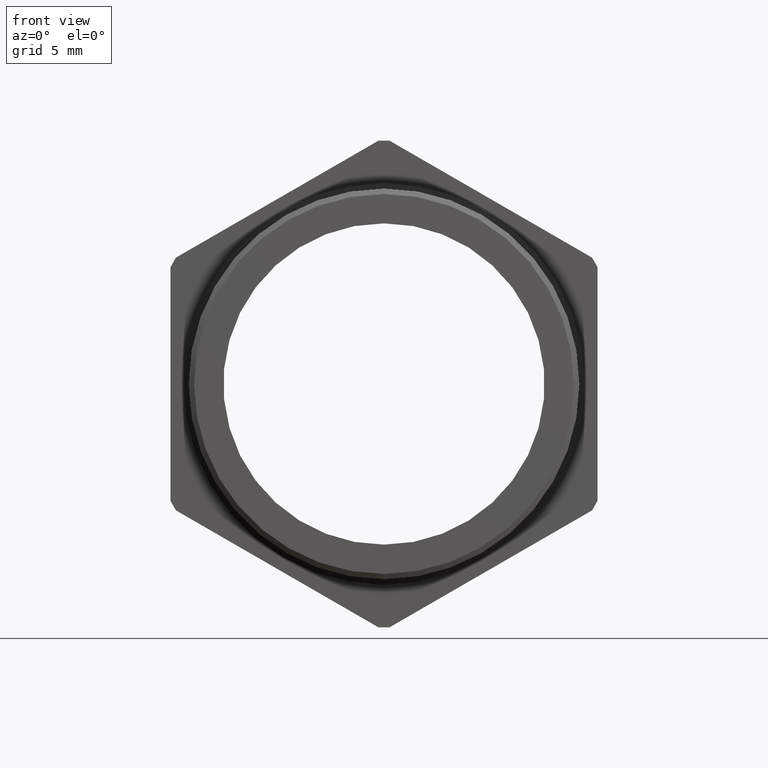
[diagram: clean part render]
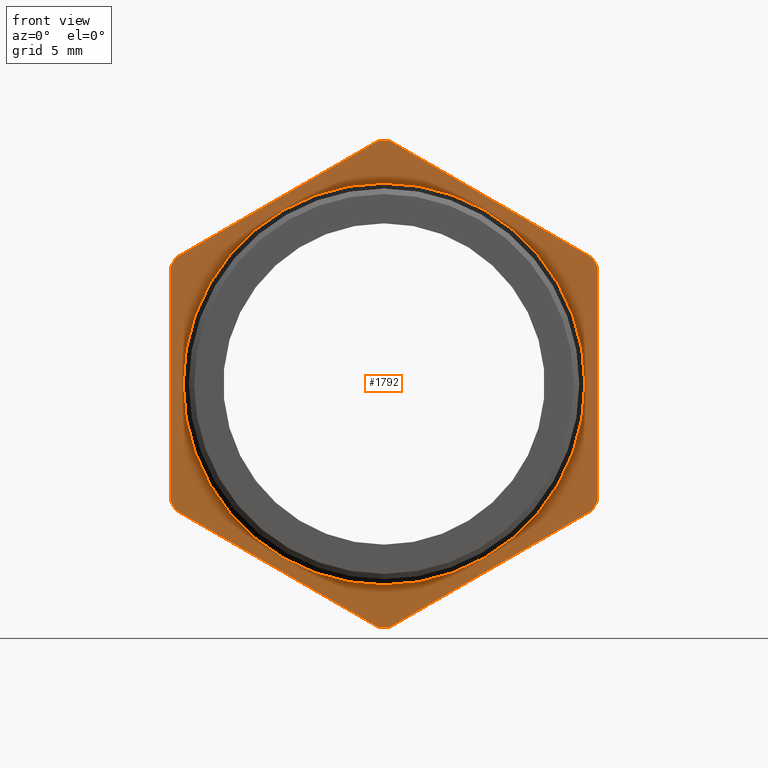
[diagram: same view with one face highlighted and labeled with its STEP entity id]
A machine part, front view. The second image highlights one B-rep face of the part: STEP entity #1792.
In plain terms, the highlighted planar face has unit normal (0, -1, 0).
Its self-contained STEP definition (entity closure, byte-faithful):
#2 = CARTESIAN_POINT ( 'NONE',  ( 0.0000000000000000000, 0.2700000000000000700, 0.0000000000000000000 ) ) ;
#4 = DIRECTION ( 'NONE',  ( 0.0000000000000000000, 0.0000000000000000000, -1.000000000000000000 ) ) ;
#5 = DIRECTION ( 'NONE',  ( 0.0000000000000000000, -1.000000000000000000, 0.0000000000000000000 ) ) ;
#6 = CARTESIAN_POINT ( 'NONE',  ( 0.0000000000000000000, 0.2700000000000000200, 0.0000000000000000000 ) ) ;
#7 = AXIS2_PLACEMENT_3D ( 'NONE', #6, #5, #4 ) ;
#14 = CIRCLE ( 'NONE', #7, 0.6725999999999998600 ) ;
#23 = CARTESIAN_POINT ( 'NONE',  ( -0.5746749363099952200, 0.2700000000000000200, -0.3494845884686515500 ) ) ;
#32 = DIRECTION ( 'NONE',  ( -2.004957425246441200E-016, 0.0000000000000000000, 1.000000000000000000 ) ) ;
#33 = VECTOR ( 'NONE', #32, 39.37007874015748100 ) ;
#34 = CARTESIAN_POINT ( 'NONE',  ( 0.5899999999999999700, 0.2700000000000000200, -0.3406366588218796600 ) ) ;
#35 = LINE ( 'NONE', #34, #33 ) ;
#36 = DIRECTION ( 'NONE',  ( 0.0000000000000000000, 0.0000000000000000000, -1.000000000000000000 ) ) ;
#37 = DIRECTION ( 'NONE',  ( 0.0000000000000000000, -1.000000000000000000, 0.0000000000000000000 ) ) ;
#38 = CARTESIAN_POINT ( 'NONE',  ( 0.5550000000000000500, 0.2700000000000000200, 0.0000000000000000000 ) ) ;
#39 = AXIS2_PLACEMENT_3D ( 'NONE', #38, #37, #36 ) ;
#40 = PLANE ( 'NONE',  #39 ) ;
#41 = FACE_OUTER_BOUND ( 'NONE', #1788, .T. ) ;
#42 = FACE_BOUND ( 'NONE', #1777, .T. ) ;
#43 = DIRECTION ( 'NONE',  ( 0.0000000000000000000, 0.0000000000000000000, -1.000000000000000000 ) ) ;
#44 = DIRECTION ( 'NONE',  ( 0.0000000000000000000, -1.000000000000000000, 0.0000000000000000000 ) ) ;
#45 = AXIS2_PLACEMENT_3D ( 'NONE', #2, #44, #43 ) ;
#46 = CIRCLE ( 'NONE', #45, 0.5550000000000000500 ) ;
#62 = DIRECTION ( 'NONE',  ( 0.0000000000000000000, 0.0000000000000000000, -1.000000000000000000 ) ) ;
#63 = DIRECTION ( 'NONE',  ( 0.0000000000000000000, -1.000000000000000000, 0.0000000000000000000 ) ) ;
#64 = AXIS2_PLACEMENT_3D ( 'NONE', #72, #63, #62 ) ;
#65 = CIRCLE ( 'NONE', #64, 0.6725999999999998600 ) ;
#72 = CARTESIAN_POINT ( 'NONE',  ( 0.0000000000000000000, 0.2700000000000000200, 0.0000000000000000000 ) ) ;
#84 = CARTESIAN_POINT ( 'NONE',  ( 0.01532506369000548100, 0.2700000000000000200, -0.6724253879969858100 ) ) ;
#86 = DIRECTION ( 'NONE',  ( -0.8660254037844388200, 0.0000000000000000000, -0.4999999999999997200 ) ) ;
#87 = VECTOR ( 'NONE', #86, 39.37007874015748900 ) ;
#88 = CARTESIAN_POINT ( 'NONE',  ( 7.066657801307787900E-017, 0.2700000000000000200, 0.6812733176437583100 ) ) ;
#89 = LINE ( 'NONE', #88, #87 ) ;
#96 = CARTESIAN_POINT ( 'NONE',  ( -0.5899999999999999700, 0.2700000000000000200, 0.3229407995283342700 ) ) ;
#113 = CARTESIAN_POINT ( 'NONE',  ( -0.5746749363099947800, 0.2700000000000000200, 0.3494845884686519400 ) ) ;
#161 = CARTESIAN_POINT ( 'NONE',  ( 0.5746749363099952200, 0.2700000000000000200, 0.3494845884686515500 ) ) ;
#162 = DIRECTION ( 'NONE',  ( 0.0000000000000000000, 0.0000000000000000000, -1.000000000000000000 ) ) ;
#163 = DIRECTION ( 'NONE',  ( 0.0000000000000000000, -1.000000000000000000, 0.0000000000000000000 ) ) ;
#164 = AXIS2_PLACEMENT_3D ( 'NONE', #170, #163, #162 ) ;
#165 = CIRCLE ( 'NONE', #164, 0.6725999999999998600 ) ;
#170 = CARTESIAN_POINT ( 'NONE',  ( 0.0000000000000000000, 0.2700000000000000200, 0.0000000000000000000 ) ) ;
#213 = DIRECTION ( 'NONE',  ( 0.8660254037844388200, 0.0000000000000000000, 0.4999999999999998300 ) ) ;
#214 = VECTOR ( 'NONE', #213, 39.37007874015748100 ) ;
#215 = CARTESIAN_POINT ( 'NONE',  ( 2.300103965636416700E-016, 0.2700000000000000200, -0.6812733176437585400 ) ) ;
#216 = LINE ( 'NONE', #215, #214 ) ;
#248 = CARTESIAN_POINT ( 'NONE',  ( -0.01532506369000472000, 0.2700000000000000200, 0.6724253879969858100 ) ) ;
#260 = DIRECTION ( 'NONE',  ( -0.8660254037844386000, 0.0000000000000000000, 0.5000000000000000000 ) ) ;
#261 = VECTOR ( 'NONE', #260, 39.37007874015748900 ) ;
#262 = CARTESIAN_POINT ( 'NONE',  ( 0.5899999999999998600, 0.2700000000000000200, 0.3406366588218792100 ) ) ;
#263 = LINE ( 'NONE', #262, #261 ) ;
#314 = DIRECTION ( 'NONE',  ( 0.0000000000000000000, 0.0000000000000000000, -1.000000000000000000 ) ) ;
#315 = DIRECTION ( 'NONE',  ( 0.0000000000000000000, -1.000000000000000000, 0.0000000000000000000 ) ) ;
#316 = CARTESIAN_POINT ( 'NONE',  ( 0.0000000000000000000, 0.2700000000000000200, 0.0000000000000000000 ) ) ;
#317 = AXIS2_PLACEMENT_3D ( 'NONE', #316, #315, #314 ) ;
#318 = CIRCLE ( 'NONE', #317, 0.6725999999999998600 ) ;
#319 = CARTESIAN_POINT ( 'NONE',  ( 0.01532506369000477500, 0.2700000000000000200, 0.6724253879969859200 ) ) ;
#323 = DIRECTION ( 'NONE',  ( 0.8660254037844386000, 0.0000000000000000000, -0.5000000000000001100 ) ) ;
#324 = VECTOR ( 'NONE', #323, 39.37007874015748100 ) ;
#325 = CARTESIAN_POINT ( 'NONE',  ( -0.5899999999999998600, 0.2700000000000000200, -0.3406366588218792100 ) ) ;
#326 = LINE ( 'NONE', #325, #324 ) ;
#370 = DIRECTION ( 'NONE',  ( 2.004957425246441900E-016, 0.0000000000000000000, -1.000000000000000000 ) ) ;
#371 = VECTOR ( 'NONE', #370, 39.37007874015748100 ) ;
#372 = CARTESIAN_POINT ( 'NONE',  ( -0.5899999999999999700, 0.2700000000000000200, 0.3406366588218792700 ) ) ;
#373 = LINE ( 'NONE', #372, #371 ) ;
#530 = CARTESIAN_POINT ( 'NONE',  ( 0.5899999999999999700, 0.2700000000000000200, -0.3229407995283342700 ) ) ;
#555 = DIRECTION ( 'NONE',  ( 0.0000000000000000000, 0.0000000000000000000, -1.000000000000000000 ) ) ;
#556 = DIRECTION ( 'NONE',  ( 0.0000000000000000000, -1.000000000000000000, 0.0000000000000000000 ) ) ;
#557 = AXIS2_PLACEMENT_3D ( 'NONE', #563, #556, #555 ) ;
#558 = CIRCLE ( 'NONE', #557, 0.6725999999999998600 ) ;
#563 = CARTESIAN_POINT ( 'NONE',  ( 0.0000000000000000000, 0.2700000000000000200, 0.0000000000000000000 ) ) ;
#634 = CARTESIAN_POINT ( 'NONE',  ( 0.5899999999999998600, 0.2700000000000000200, 0.3229407995283344900 ) ) ;
#648 = CARTESIAN_POINT ( 'NONE',  ( 0.5746749363099946700, 0.2700000000000000200, -0.3494845884686524400 ) ) ;
#677 = CARTESIAN_POINT ( 'NONE',  ( 0.0000000000000000000, 0.2700000000000000200, -0.6725999999999998600 ) ) ;
#698 = CARTESIAN_POINT ( 'NONE',  ( -0.01532506369000484300, 0.2700000000000000200, -0.6724253879969859200 ) ) ;
#700 = DIRECTION ( 'NONE',  ( 0.0000000000000000000, 0.0000000000000000000, -1.000000000000000000 ) ) ;
#701 = DIRECTION ( 'NONE',  ( 0.0000000000000000000, -1.000000000000000000, 0.0000000000000000000 ) ) ;
#702 = CARTESIAN_POINT ( 'NONE',  ( 0.0000000000000000000, 0.2700000000000000200, 0.0000000000000000000 ) ) ;
#703 = AXIS2_PLACEMENT_3D ( 'NONE', #702, #701, #700 ) ;
#704 = CIRCLE ( 'NONE', #703, 0.6725999999999998600 ) ;
#977 = CARTESIAN_POINT ( 'NONE',  ( 6.796789735267810000E-017, 0.2700000000000000700, -0.5550000000000000500 ) ) ;
#995 = CARTESIAN_POINT ( 'NONE',  ( 0.0000000000000000000, 0.2700000000000000700, 0.5550000000000000500 ) ) ;
#996 = DIRECTION ( 'NONE',  ( 0.0000000000000000000, 0.0000000000000000000, -1.000000000000000000 ) ) ;
#997 = DIRECTION ( 'NONE',  ( 0.0000000000000000000, -1.000000000000000000, 0.0000000000000000000 ) ) ;
#998 = CARTESIAN_POINT ( 'NONE',  ( 0.0000000000000000000, 0.2700000000000000700, 0.0000000000000000000 ) ) ;
#999 = AXIS2_PLACEMENT_3D ( 'NONE', #998, #997, #996 ) ;
#1000 = CIRCLE ( 'NONE', #999, 0.5550000000000000500 ) ;
#1763 = VERTEX_POINT ( 'NONE', #2169 ) ;
#1764 = EDGE_CURVE ( 'NONE', #2248, #1823, #2168, .T. ) ;
#1774 = VERTEX_POINT ( 'NONE', #23 ) ;
#1777 = EDGE_LOOP ( 'NONE', ( #1790, #1785 ) ) ;
#1783 = EDGE_CURVE ( 'NONE', #1763, #1774, #14, .T. ) ;
#1785 = ORIENTED_EDGE ( 'NONE', *, *, #2406, .F. ) ;
#1788 = EDGE_LOOP ( 'NONE', ( #1941, #1939, #1940, #1986, #1914, #1916, #1917, #1912, #1929, #1915, #1928, #1979, #1980 ) ) ;
#1790 = ORIENTED_EDGE ( 'NONE', *, *, #1791, .F. ) ;
#1791 = EDGE_CURVE ( 'NONE', #2407, #2387, #46, .T. ) ;
#1792 = ADVANCED_FACE ( 'NONE', ( #42, #41 ), #40, .T. ) ;
#1793 = EDGE_CURVE ( 'NONE', #2107, #2199, #35, .T. ) ;
#1806 = EDGE_CURVE ( 'NONE', #1810, #1817, #65, .T. ) ;
#1810 = VERTEX_POINT ( 'NONE', #113 ) ;
#1817 = VERTEX_POINT ( 'NONE', #96 ) ;
#1821 = EDGE_CURVE ( 'NONE', #1888, #1810, #89, .T. ) ;
#1823 = VERTEX_POINT ( 'NONE', #84 ) ;
#1849 = EDGE_CURVE ( 'NONE', #2199, #1851, #165, .T. ) ;
#1851 = VERTEX_POINT ( 'NONE', #161 ) ;
#1876 = EDGE_CURVE ( 'NONE', #1823, #2229, #216, .T. ) ;
#1882 = EDGE_CURVE ( 'NONE', #1851, #1907, #263, .T. ) ;
#1888 = VERTEX_POINT ( 'NONE', #248 ) ;
#1907 = VERTEX_POINT ( 'NONE', #319 ) ;
#1909 = EDGE_CURVE ( 'NONE', #1907, #1888, #318, .T. ) ;
#1912 = ORIENTED_EDGE ( 'NONE', *, *, #1950, .T. ) ;
#1914 = ORIENTED_EDGE ( 'NONE', *, *, #1909, .T. ) ;
#1915 = ORIENTED_EDGE ( 'NONE', *, *, #1942, .T. ) ;
#1916 = ORIENTED_EDGE ( 'NONE', *, *, #1821, .T. ) ;
#1917 = ORIENTED_EDGE ( 'NONE', *, *, #1806, .T. ) ;
#1928 = ORIENTED_EDGE ( 'NONE', *, *, #2232, .T. ) ;
#1929 = ORIENTED_EDGE ( 'NONE', *, *, #1783, .T. ) ;
#1939 = ORIENTED_EDGE ( 'NONE', *, *, #1793, .T. ) ;
#1940 = ORIENTED_EDGE ( 'NONE', *, *, #1849, .T. ) ;
#1941 = ORIENTED_EDGE ( 'NONE', *, *, #2173, .T. ) ;
#1942 = EDGE_CURVE ( 'NONE', #1774, #2237, #326, .T. ) ;
#1950 = EDGE_CURVE ( 'NONE', #1817, #1763, #373, .T. ) ;
#1979 = ORIENTED_EDGE ( 'NONE', *, *, #1764, .T. ) ;
#1980 = ORIENTED_EDGE ( 'NONE', *, *, #1876, .T. ) ;
#1986 = ORIENTED_EDGE ( 'NONE', *, *, #1882, .T. ) ;
#2107 = VERTEX_POINT ( 'NONE', #530 ) ;
#2164 = DIRECTION ( 'NONE',  ( 0.0000000000000000000, 0.0000000000000000000, -1.000000000000000000 ) ) ;
#2165 = DIRECTION ( 'NONE',  ( 0.0000000000000000000, -1.000000000000000000, 0.0000000000000000000 ) ) ;
#2166 = CARTESIAN_POINT ( 'NONE',  ( 0.0000000000000000000, 0.2700000000000000200, 0.0000000000000000000 ) ) ;
#2167 = AXIS2_PLACEMENT_3D ( 'NONE', #2166, #2165, #2164 ) ;
#2168 = CIRCLE ( 'NONE', #2167, 0.6725999999999998600 ) ;
#2169 = CARTESIAN_POINT ( 'NONE',  ( -0.5899999999999998600, 0.2700000000000000200, -0.3229407995283346000 ) ) ;
#2173 = EDGE_CURVE ( 'NONE', #2229, #2107, #558, .T. ) ;
#2199 = VERTEX_POINT ( 'NONE', #634 ) ;
#2229 = VERTEX_POINT ( 'NONE', #648 ) ;
#2232 = EDGE_CURVE ( 'NONE', #2237, #2248, #704, .T. ) ;
#2237 = VERTEX_POINT ( 'NONE', #698 ) ;
#2248 = VERTEX_POINT ( 'NONE', #677 ) ;
#2387 = VERTEX_POINT ( 'NONE', #977 ) ;
#2406 = EDGE_CURVE ( 'NONE', #2387, #2407, #1000, .T. ) ;
#2407 = VERTEX_POINT ( 'NONE', #995 ) ;